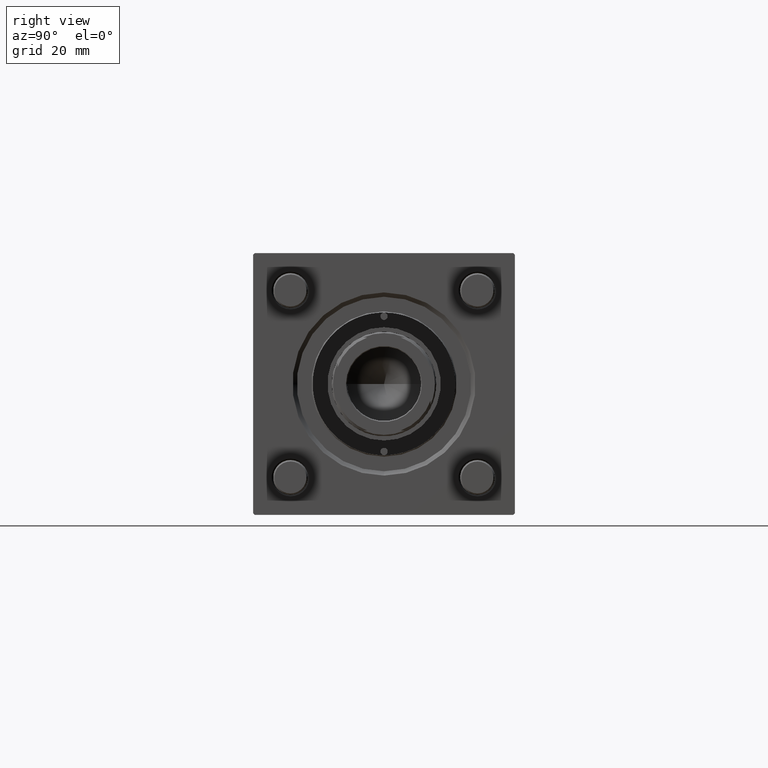
[diagram: clean part render]
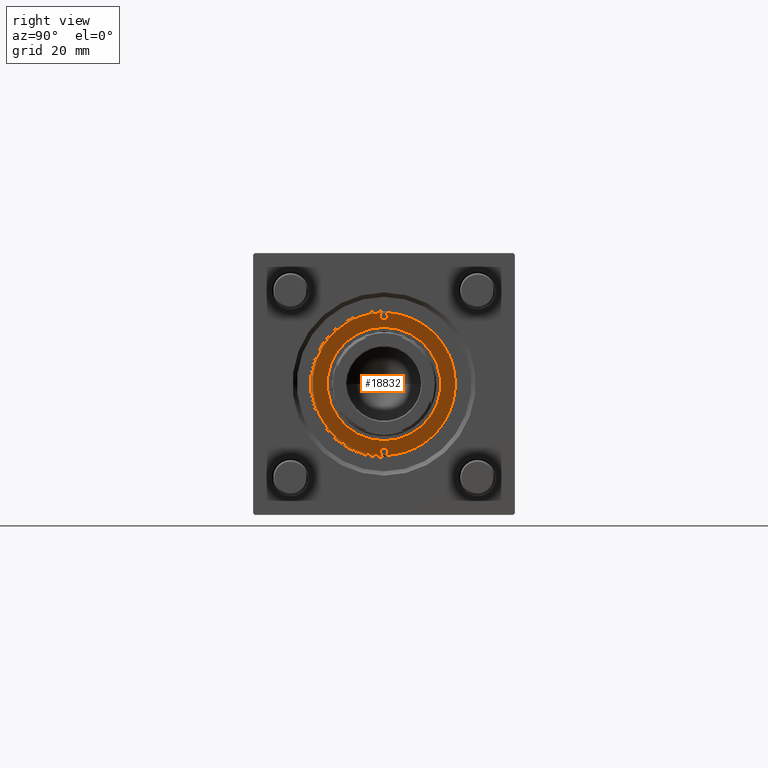
[diagram: same view with one face highlighted and labeled with its STEP entity id]
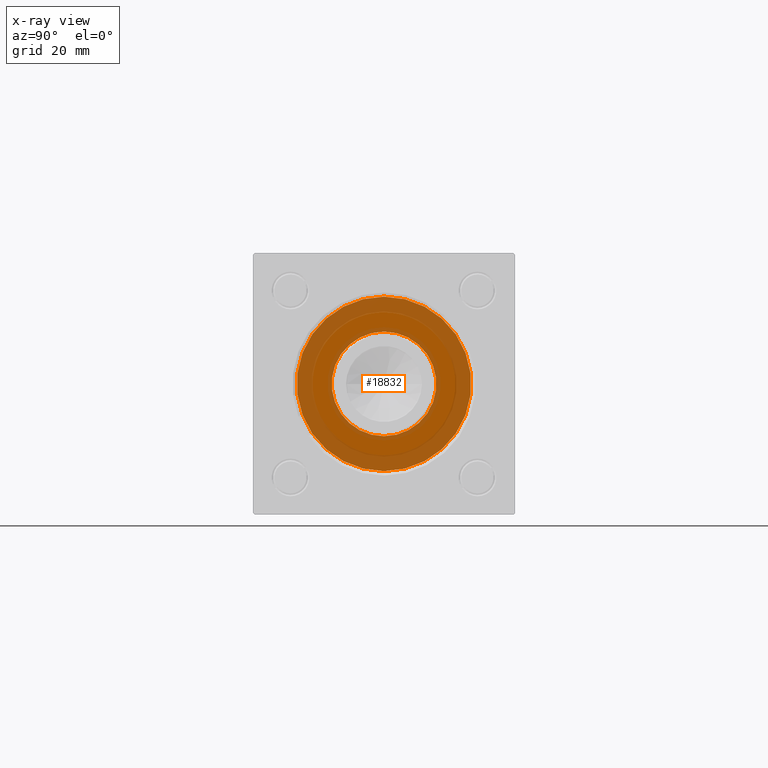
[diagram: x-ray of the same camera — body ghosted, the highlighted face saturated]
A machine part, right view. The second image highlights one B-rep face of the part: STEP entity #18832.
The next image is the same camera in x-ray: the body ghosted, the highlighted face saturated — about 61% of this face is hidden behind the body in this view.
In plain terms, the highlighted planar face has unit normal (1, 0, 0).
Its self-contained STEP definition (entity closure, byte-faithful):
#2658 = DIRECTION ( 'NONE',  ( 0.000000000000000000, 0.000000000000000000, 1.000000000000000000 ) ) ;
#4232 = CIRCLE ( 'NONE', #22628, 30.00000000000000000 ) ;
#4241 = AXIS2_PLACEMENT_3D ( 'NONE', #40675, #13355, #39819 ) ;
#5512 = DIRECTION ( 'NONE',  ( 1.000000000000000000, 0.000000000000000000, 0.000000000000000000 ) ) ;
#5955 = EDGE_CURVE ( 'NONE', #8099, #31641, #4232, .T. ) ;
#6871 = VERTEX_POINT ( 'NONE', #35556 ) ;
#8099 = VERTEX_POINT ( 'NONE', #27997 ) ;
#9589 = FACE_OUTER_BOUND ( 'NONE', #39728, .T. ) ;
#10446 = FACE_BOUND ( 'NONE', #19262, .T. ) ;
#13355 = DIRECTION ( 'NONE',  ( 0.000000000000000000, 0.000000000000000000, 1.000000000000000000 ) ) ;
#15314 = DIRECTION ( 'NONE',  ( 1.000000000000000000, 0.000000000000000000, -0.000000000000000000 ) ) ;
#15442 = EDGE_CURVE ( 'NONE', #40788, #6871, #24758, .T. ) ;
#18090 = ORIENTED_EDGE ( 'NONE', *, *, #46091, .F. ) ;
#18271 = AXIS2_PLACEMENT_3D ( 'NONE', #50682, #2658, #15314 ) ;
#18454 = DIRECTION ( 'NONE',  ( -0.000000000000000000, -0.000000000000000000, -1.000000000000000000 ) ) ;
#18832 = ADVANCED_FACE ( 'NONE', ( #10446, #9589 ), #28541, .F. ) ;
#19262 = EDGE_LOOP ( 'NONE', ( #18090, #40410 ) ) ;
#22628 = AXIS2_PLACEMENT_3D ( 'NONE', #41627, #50796, #36744 ) ;
#24563 = DIRECTION ( 'NONE',  ( -0.000000000000000000, -0.000000000000000000, -1.000000000000000000 ) ) ;
#24758 = CIRCLE ( 'NONE', #28414, 18.00000000000000000 ) ;
#25249 = ORIENTED_EDGE ( 'NONE', *, *, #49491, .F. ) ;
#27997 = CARTESIAN_POINT ( 'NONE',  ( -30.00000000000000000, 0.000000000000000000, 0.000000000000000000 ) ) ;
#28414 = AXIS2_PLACEMENT_3D ( 'NONE', #32258, #18454, #5512 ) ;
#28541 = PLANE ( 'NONE',  #18271 ) ;
#31641 = VERTEX_POINT ( 'NONE', #56023 ) ;
#32258 = CARTESIAN_POINT ( 'NONE',  ( 0.000000000000000000, 0.000000000000000000, 0.000000000000000000 ) ) ;
#32760 = CIRCLE ( 'NONE', #4241, 30.00000000000000000 ) ;
#35556 = CARTESIAN_POINT ( 'NONE',  ( 18.00000000000000000, 0.000000000000000000, 0.000000000000000000 ) ) ;
#36744 = DIRECTION ( 'NONE',  ( 1.000000000000000000, 0.000000000000000000, 0.000000000000000000 ) ) ;
#39728 = EDGE_LOOP ( 'NONE', ( #55165, #25249 ) ) ;
#39819 = DIRECTION ( 'NONE',  ( 1.000000000000000000, 0.000000000000000000, 0.000000000000000000 ) ) ;
#40410 = ORIENTED_EDGE ( 'NONE', *, *, #15442, .F. ) ;
#40675 = CARTESIAN_POINT ( 'NONE',  ( 0.000000000000000000, 0.000000000000000000, 0.000000000000000000 ) ) ;
#40788 = VERTEX_POINT ( 'NONE', #43468 ) ;
#41627 = CARTESIAN_POINT ( 'NONE',  ( 0.000000000000000000, 0.000000000000000000, 0.000000000000000000 ) ) ;
#42842 = AXIS2_PLACEMENT_3D ( 'NONE', #46704, #24563, #47253 ) ;
#43468 = CARTESIAN_POINT ( 'NONE',  ( -18.00000000000000000, 2.204364238465235428E-15, 0.000000000000000000 ) ) ;
#46091 = EDGE_CURVE ( 'NONE', #6871, #40788, #55701, .T. ) ;
#46704 = CARTESIAN_POINT ( 'NONE',  ( 0.000000000000000000, 0.000000000000000000, 0.000000000000000000 ) ) ;
#47253 = DIRECTION ( 'NONE',  ( 1.000000000000000000, 0.000000000000000000, 0.000000000000000000 ) ) ;
#49491 = EDGE_CURVE ( 'NONE', #31641, #8099, #32760, .T. ) ;
#50682 = CARTESIAN_POINT ( 'NONE',  ( 0.000000000000000000, 0.000000000000000000, 0.000000000000000000 ) ) ;
#50796 = DIRECTION ( 'NONE',  ( 0.000000000000000000, 0.000000000000000000, 1.000000000000000000 ) ) ;
#55165 = ORIENTED_EDGE ( 'NONE', *, *, #5955, .F. ) ;
#55701 = CIRCLE ( 'NONE', #42842, 18.00000000000000000 ) ;
#56023 = CARTESIAN_POINT ( 'NONE',  ( 30.00000000000000000, 3.673940397442059178E-15, 0.000000000000000000 ) ) ;